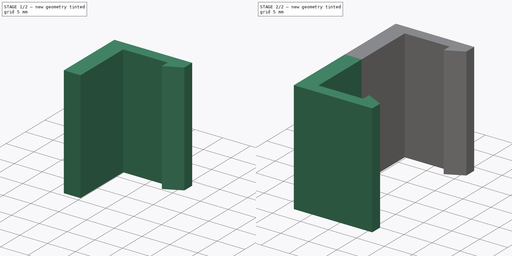
[diagram: build sequence overview — one tinted view per stage of 2, left to right]
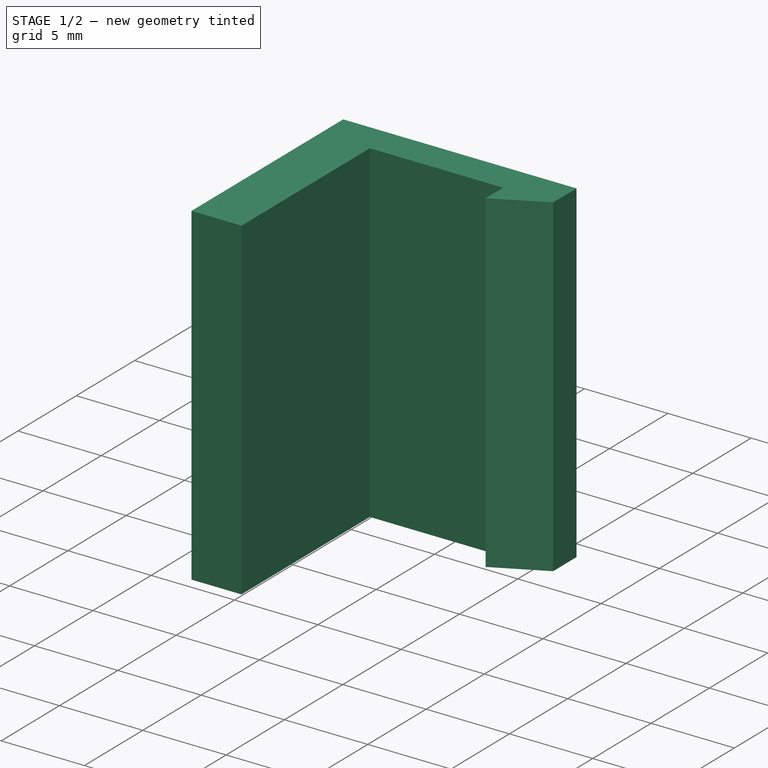
[diagram: stage 1 of 2 — iso view after this stage's code; geometry added in this stage tinted green]
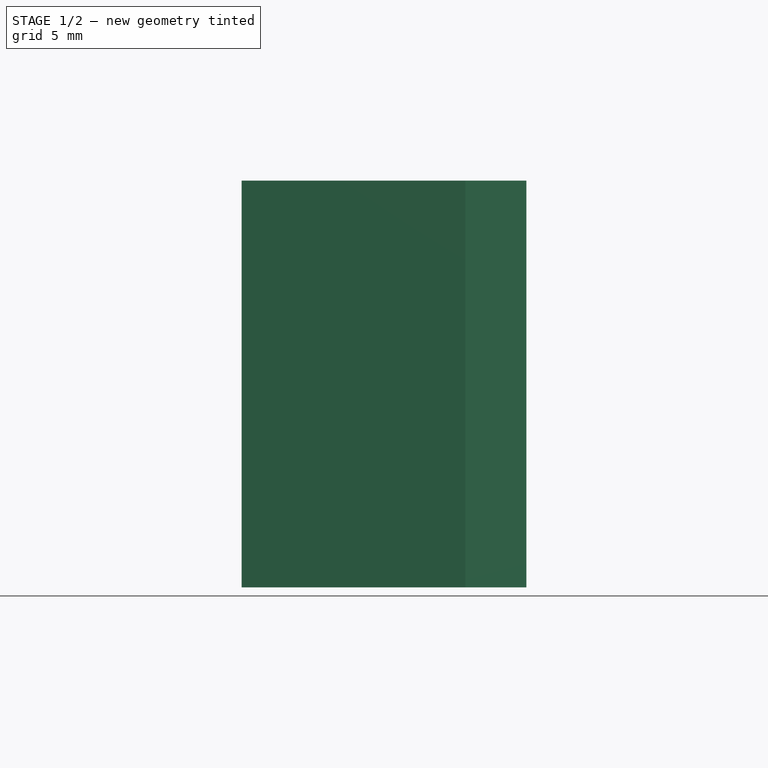
[diagram: stage 1 of 2 — front view after this stage's code; geometry added in this stage tinted green]
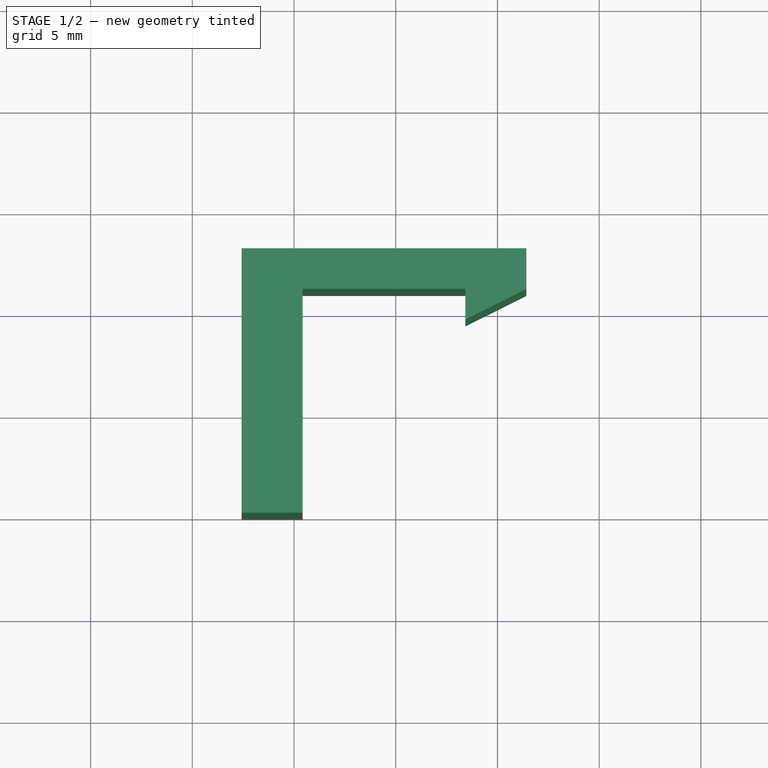
[diagram: stage 1 of 2 — top view after this stage's code; geometry added in this stage tinted green]
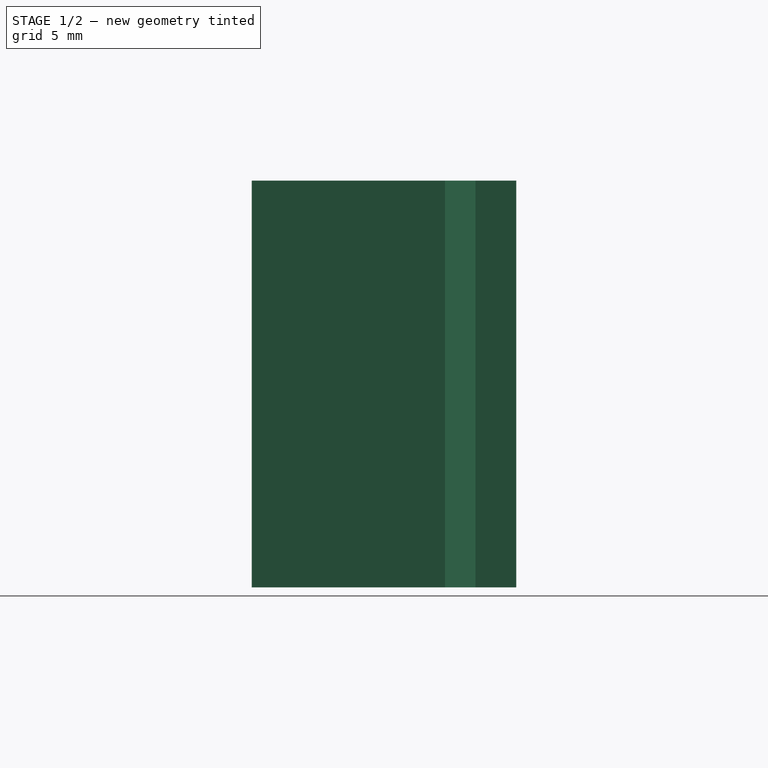
[diagram: stage 1 of 2 — right view after this stage's code; geometry added in this stage tinted green]
FCSTD DOCUMENT  (FreeCAD 0.18R16110 (Git))
Label: clipsBande
License: All rights reserved
LicenseURL: http://en.wikipedia.org/wiki/All_rights_reserved
objects: Sketcher::SketchObject×1, PartDesign::Pad×1, PartDesign::Mirrored×1, PartDesign::Body×1
note: 5 computed .brp shape members not serialized (recipe doc carries the construction recipe); baked Part::Feature solids carry a one-line shape summary decoded from their .brp

FEATURE [Sketcher::SketchObject] Sketch
  MapMode = 5
  Support = -> [XY_Plane]
  sketch-geometry (8):
    g0: LineSegment StartX=3.422 StartY=11 StartZ=0 EndX=3.422 EndY=9.5 EndZ=0
    g1: LineSegment StartX=3.422 StartY=9.5 StartZ=0 EndX=6.422 EndY=11 EndZ=0
    g2: LineSegment StartX=6.422 StartY=11 StartZ=0 EndX=6.422 EndY=13 EndZ=0
    g3: LineSegment StartX=6.422 StartY=13 StartZ=0 EndX=-7.578 EndY=13 EndZ=0
    g4: LineSegment StartX=-7.578 StartY=13 StartZ=0 EndX=-7.578 EndY=0 EndZ=0
    g5: LineSegment StartX=-7.578 StartY=0 StartZ=0 EndX=-4.578 EndY=0 EndZ=0
    g6: LineSegment StartX=-4.578 StartY=0 StartZ=0 EndX=-4.578 EndY=11 EndZ=0
    g7: LineSegment StartX=-4.578 StartY=11 StartZ=0 EndX=3.422 EndY=11 EndZ=0
  constraints (23):
    c: Coincident(g0,g1)
    c: Coincident(g1,g2)
    c: Vertical(g2)
    c: Coincident(g2,g3)
    c: Horizontal(g3)
    c: Coincident(g3,g4)
    c: PointOnObject(g4,g-1)
    c: Vertical(g4)
    c: Coincident(g4,g5)
    c: PointOnObject(g5,g-1)
    c: Coincident(g5,g6)
    c: Vertical(g6)
    c: Coincident(g6,g7)
    c: Coincident(g7,g0)
    c: Horizontal(g7)
    c: DistanceX(g3,g6) = 3
    c: DistanceY(g0,g0) = 1.5
    c: DistanceY(g0,g2) = 2
    c: DistanceY(g2,g2) = 2
    c: Perpendicular(g0,g7)
    c: DistanceX(g0,g1) = 3
    c: DistanceX(g7,g7) = 8
    c: DistanceY(g5,g6) = 11
FEATURE [PartDesign::Pad] Pad
  Length = 20
  Length2 = 100
  Profile = -> Sketch
  Type = 0
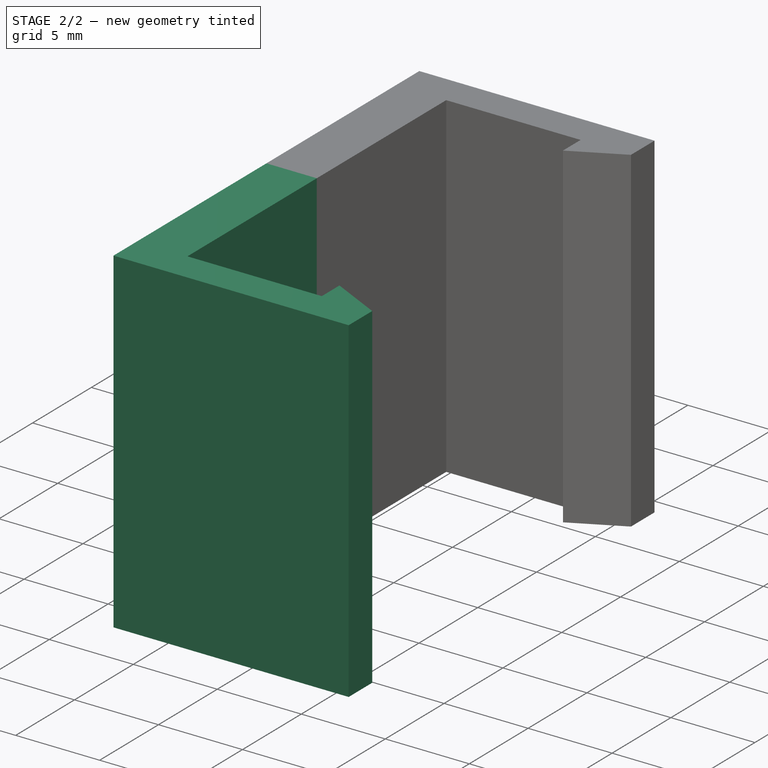
[diagram: stage 2 of 2 — iso view after this stage's code; geometry added in this stage tinted green]
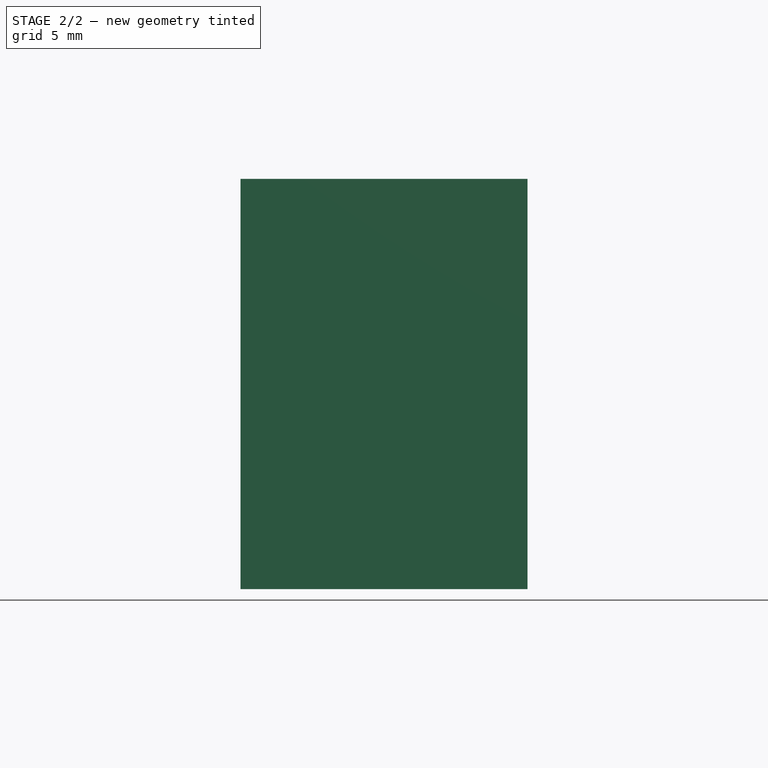
[diagram: stage 2 of 2 — front view after this stage's code; geometry added in this stage tinted green]
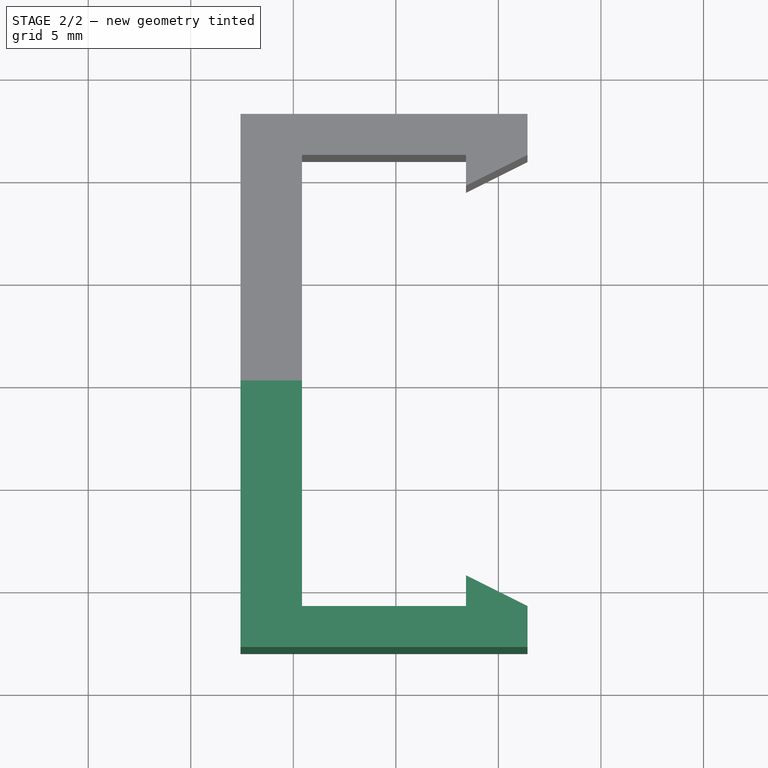
[diagram: stage 2 of 2 — top view after this stage's code; geometry added in this stage tinted green]
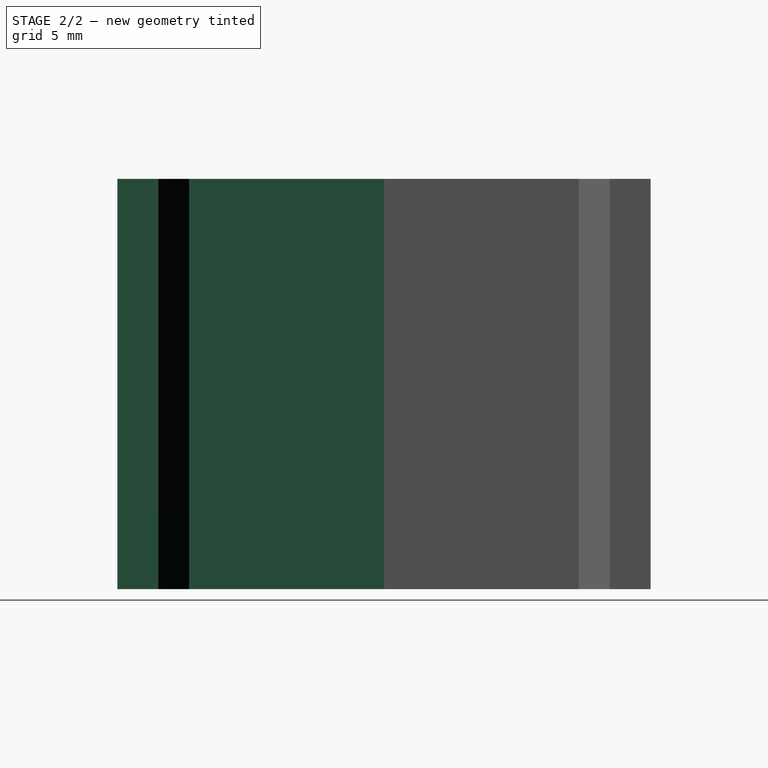
[diagram: stage 2 of 2 — right view after this stage's code; geometry added in this stage tinted green]
FEATURE [PartDesign::Mirrored] Mirrored
  BaseFeature = -> Pad
  MirrorPlane = -> Sketch [H_Axis]
  Originals = -> [Pad]
FEATURE [PartDesign::Body] Body
  Group = -> [Sketch,Pad,Mirrored]
  Origin = -> Origin
  Tip = -> Mirrored
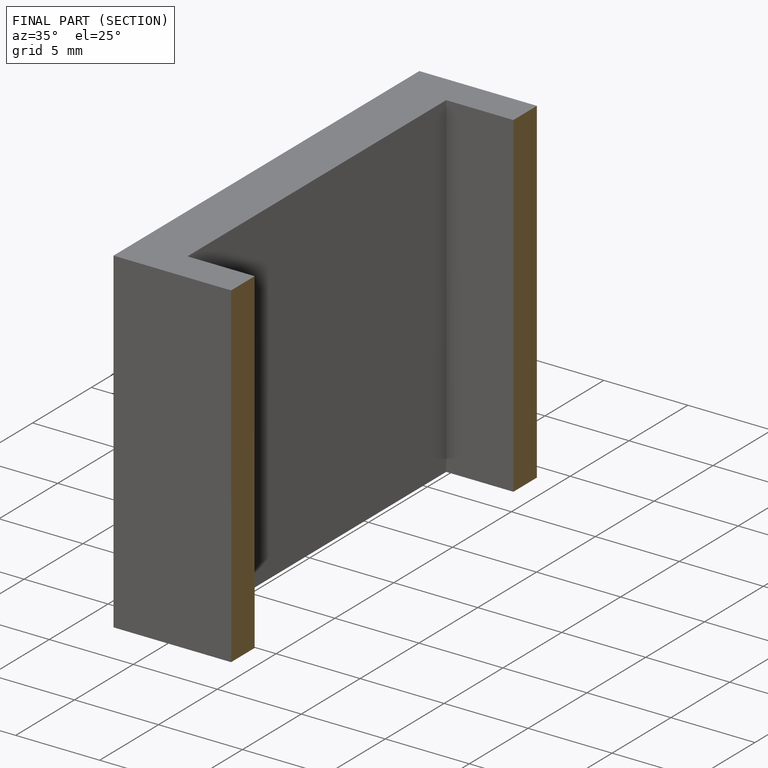
[diagram: finished part — half-section view (interior)]
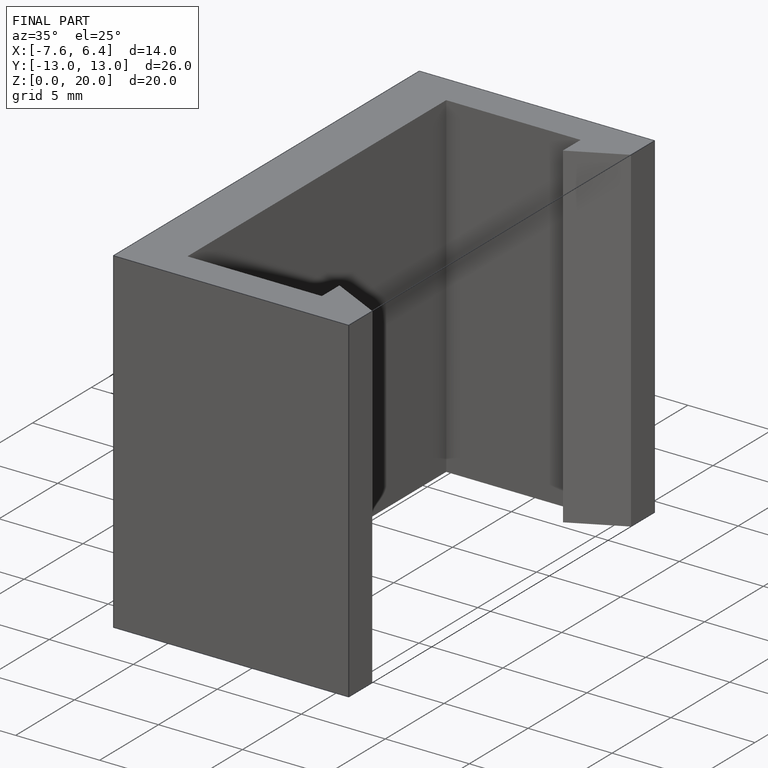
[diagram: finished part — iso view with bounding-box wireframe]
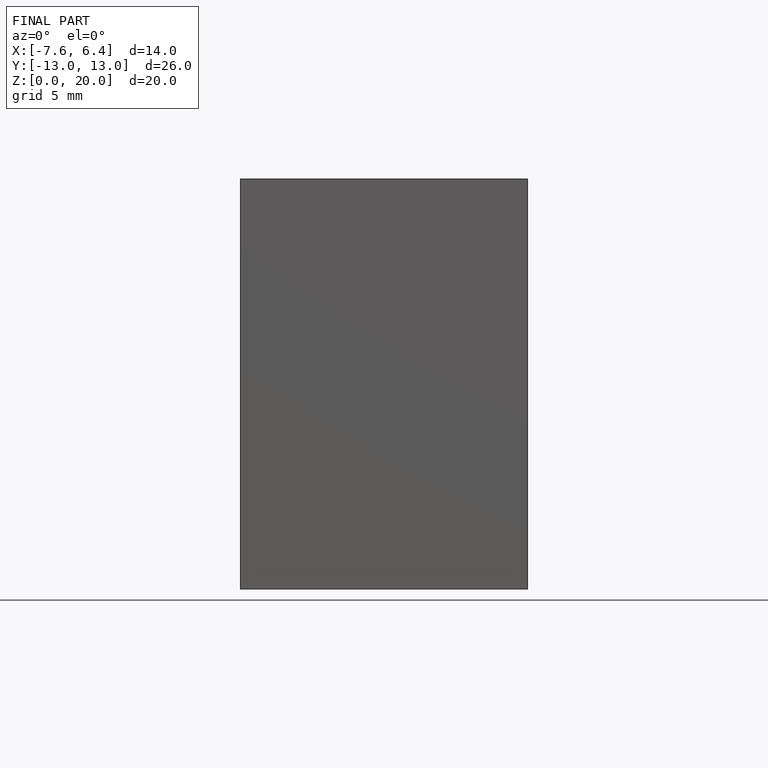
[diagram: finished part — front view with bounding-box wireframe]
